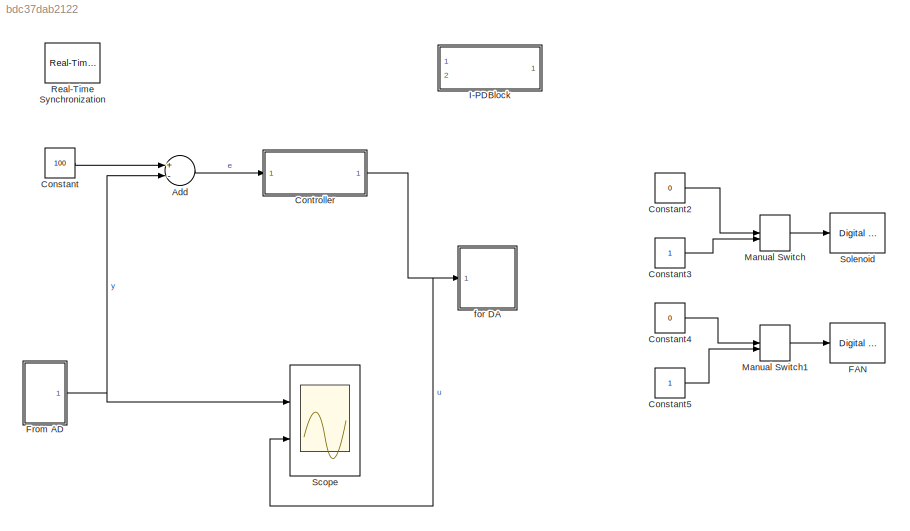
MODEL slx_bdc37dab2122
KIND model
CONFIG AbsTol = auto
CONFIG EnableMultiTasking = off
CONFIG FixedStep = 0.1
CONFIG MaxStep = auto
CONFIG MinStep = auto
CONFIG RelTol = 1e-3
CONFIG SampleTimeConstraint = Unconstrained
CONFIG Solver = FixedStepAuto
CONFIG SolverName = FixedStepAuto
CONFIG StartTime = 0.0
CONFIG StopTime = 200
BLOCK [Sum] Add
  InputSameDT = off
  Inputs = +-
  OutDataTypeStr = Inherit: Inherit via internal rule
  Ports = [2, 1]
  SaturateOnIntegerOverflow = off
BLOCK [Constant] Constant
  Value = 100
BLOCK [Constant] Constant2
  Value = 0
BLOCK [Constant] Constant3
BLOCK [Constant] Constant4
  Value = 0
BLOCK [Constant] Constant5
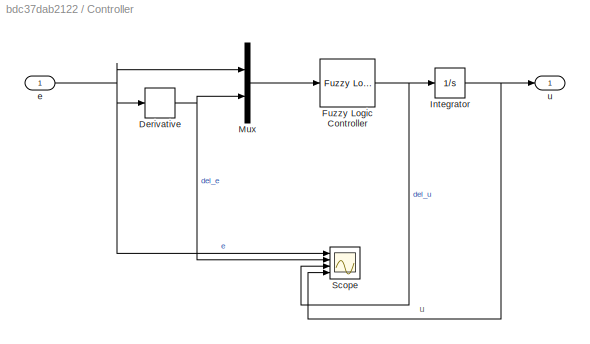
BLOCK [SubSystem] Controller
  Ports = [1, 1]
  RequestExecContextInheritance = off
  Variant = off
BLOCK [Derivative] Controller/Derivative
BLOCK [Reference] Controller/Fuzzy Logic Controller  REF=fuzblock/Fuzzy Logic   (lib defined in mdl_858b3b3e7478)
Controller
  Ports = [1, 1]
  SourceBlock = fuzblock/Fuzzy Logic \nController
  SourceProductBaseCode = FL
  SourceProductName = Fuzzy Logic Toolbox
  SourceType = FIS
BLOCK [Integrator] Controller/Integrator
  InitialCondition = 30
  LimitOutput = on
  LowerSaturationLimit = 0
  Ports = [1, 1]
  UpperSaturationLimit = 30
BLOCK [Mux] Controller/Mux
  DisplayOption = bar
  Inputs = 2
  Ports = [2, 1]
BLOCK [Scope] Controller/Scope
  NumInputPorts = 4
  Ports = [4]
  ScopeSpecificationString = Simulink.scopes.TimeScopeBlockCfg('CurrentConfiguration', extmgr.ConfigurationSet(extmgr.Configuration('Core','General UI',true,'FigureColor',[1 1 1]),extmgr.Configuration('Core','Source UI',true),extmgr.Configuration('Sources','WiredSimulink',true,'DataLoggingVariableName','ScopeData1'),extmgr.Configuration('Visuals','Time Domain',true,'SerializedDisplays',{struct('MinYLimReal','-95.34302','MaxYL...<+4081ch>
BLOCK [Inport] Controller/e 
  IconDisplay = Port number
BLOCK [Outport] Controller/u
  IconDisplay = Port number
BLOCK [Reference] FAN  REF=sldrtlib/Digital Output
  AttributesFormatString = Humusoft\nMF644 [auto]
  Ports = [1]
  SourceBlock = sldrtlib/Digital Output
  SourceProductBaseCode = WT
  SourceProductName = Simulink Desktop Real-Time
  SourceType = Simulink Desktop Real-Time Digital Output
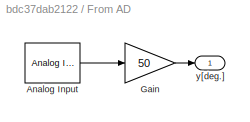
BLOCK [SubSystem] From AD
  Ports = [0, 1]
  RequestExecContextInheritance = off
  Variant = off
BLOCK [Reference] From AD/Analog Input  REF=sldrtlib/Analog Input
  AttributesFormatString = Humusoft\nMF644 [auto]
  Ports = [0, 1]
  SourceBlock = sldrtlib/Analog Input
  SourceProductBaseCode = WT
  SourceProductName = Simulink Desktop Real-Time
  SourceType = Simulink Desktop Real-Time Analog Input
BLOCK [Gain] From AD/Gain
  Gain = 50
  OutDataTypeStr = Inherit: Inherit via internal rule
  ParamDataTypeStr = Inherit: Inherit via internal rule
  SaturateOnIntegerOverflow = off
BLOCK [Outport] From AD/y[deg.]
  IconDisplay = Port number
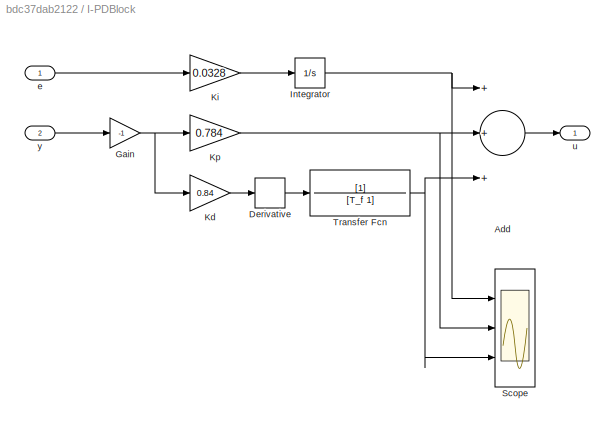
BLOCK [SubSystem] I-PDBlock
  Commented = on
  Ports = [2, 1]
  RequestExecContextInheritance = off
  Variant = off
BLOCK [Sum] I-PDBlock/Add
  InputSameDT = off
  Inputs = +++
  OutDataTypeStr = Inherit: Inherit via internal rule
  Ports = [3, 1]
  SaturateOnIntegerOverflow = off
BLOCK [Derivative] I-PDBlock/Derivative
BLOCK [Gain] I-PDBlock/Gain
  Gain = -1
  OutDataTypeStr = Inherit: Inherit via internal rule
  ParamDataTypeStr = Inherit: Inherit via internal rule
  SaturateOnIntegerOverflow = off
BLOCK [Integrator] I-PDBlock/Integrator
  Ports = [1, 1]
BLOCK [Gain] I-PDBlock/Kd
  Gain = 0.84
  OutDataTypeStr = Inherit: Inherit via internal rule
  ParamDataTypeStr = Inherit: Inherit via internal rule
  SaturateOnIntegerOverflow = off
BLOCK [Gain] I-PDBlock/Ki
  Gain = 0.0328
  OutDataTypeStr = Inherit: Inherit via internal rule
  ParamDataTypeStr = Inherit: Inherit via internal rule
  SaturateOnIntegerOverflow = off
BLOCK [Gain] I-PDBlock/Kp 
  Gain = 0.784
  OutDataTypeStr = Inherit: Inherit via internal rule
  ParamDataTypeStr = Inherit: Inherit via internal rule
  SaturateOnIntegerOverflow = off
BLOCK [Scope] I-PDBlock/Scope
  NumInputPorts = 3
  Ports = [3]
  ScopeSpecificationString = Simulink.scopes.TimeScopeBlockCfg('CurrentConfiguration', extmgr.ConfigurationSet(extmgr.Configuration('Core','General UI',true),extmgr.Configuration('Core','Source UI',true),extmgr.Configuration('Sources','WiredSimulink',true,'DataLoggingVariableName','ScopeData1'),extmgr.Configuration('Visuals','Time Domain',true,'SerializedDisplays',{struct('MinYLimReal','-11.81983','MaxYLimReal','106.37848','Y...<+2741ch>
BLOCK [TransferFcn] I-PDBlock/Transfer Fcn
  Denominator = [T_f 1]
BLOCK [Inport] I-PDBlock/e
  IconDisplay = Port number
BLOCK [Outport] I-PDBlock/u
  IconDisplay = Port number
BLOCK [Inport] I-PDBlock/y 
  IconDisplay = Port number
  Port = 2
BLOCK [ManualSwitch] Manual Switch
BLOCK [ManualSwitch] Manual Switch1
BLOCK [Reference] Real-Time Synchronization  REF=sldrtlib/Real-Time
Synchronization
  Ports = []
  SourceBlock = sldrtlib/Real-Time\nSynchronization
  SourceProductBaseCode = WT
  SourceProductName = Simulink Desktop Real-Time
  SourceType = Simulink Desktop Real-Time Synchronization
BLOCK [Scope] Scope
  NumInputPorts = 2
  Ports = [2]
  ScopeSpecificationString = Simulink.scopes.TimeScopeBlockCfg('CurrentConfiguration', extmgr.ConfigurationSet(extmgr.Configuration('Core','General UI',true,'FigureColor',[1 1 1]),extmgr.Configuration('Core','Source UI',true),extmgr.Configuration('Sources','WiredSimulink',true,'DataLoggingVariableName','ScopeData1'),extmgr.Configuration('Visuals','Time Domain',true,'SerializedDisplays',{struct('MinYLimReal','10.92529','MaxYLi...<+2313ch>
BLOCK [Reference] Solenoid  REF=sldrtlib/Digital Output
  AttributesFormatString = Humusoft\nMF644 [auto]
  Ports = [1]
  SourceBlock = sldrtlib/Digital Output
  SourceProductBaseCode = WT
  SourceProductName = Simulink Desktop Real-Time
  SourceType = Simulink Desktop Real-Time Digital Output
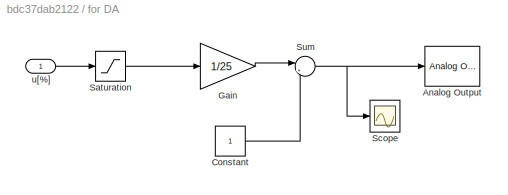
BLOCK [SubSystem] for DA
  Ports = [1]
  RequestExecContextInheritance = off
  Variant = off
BLOCK [Reference] for DA/Analog Output   REF=sldrtlib/Analog Output
  AttributesFormatString = Humusoft\nMF644 [auto]
  Ports = [1]
  SourceBlock = sldrtlib/Analog Output
  SourceProductBaseCode = WT
  SourceProductName = Simulink Desktop Real-Time
  SourceType = Simulink Desktop Real-Time Analog Output
BLOCK [Constant] for DA/Constant
BLOCK [Gain] for DA/Gain
  Gain = 1/25
  OutDataTypeStr = Inherit: Inherit via internal rule
  ParamDataTypeStr = Inherit: Inherit via internal rule
  SaturateOnIntegerOverflow = off
BLOCK [Saturate] for DA/Saturation
  InputPortMap = u0
  LowerLimit = 0
  Ports = [1, 1]
  UpperLimit = 100
BLOCK [Scope] for DA/Scope
  NumInputPorts = 1
  Ports = [1]
  ScopeSpecificationString = Simulink.scopes.TimeScopeBlockCfg('CurrentConfiguration', extmgr.ConfigurationSet(extmgr.Configuration('Core','General UI',true),extmgr.Configuration('Core','Source UI',true),extmgr.Configuration('Sources','WiredSimulink',true,'DataLoggingVariableName','ScopeData2'),extmgr.Configuration('Visuals','Time Domain',true,'SerializedDisplays',{struct('MinYLimReal','2.00000','MaxYLimReal','4.00000','YLabe...<+1415ch>
BLOCK [Sum] for DA/Sum
  IconShape = round
  InputSameDT = off
  Inputs = |++
  OutDataTypeStr = Inherit: Inherit via internal rule
  Ports = [2, 1]
  SaturateOnIntegerOverflow = off
BLOCK [Inport] for DA/u[%]
  IconDisplay = Port number
ANNOTATION Controller: u
LINE Add:1 -> Controller:1
LINE Constant2:1 -> Manual Switch:1
LINE Constant3:1 -> Manual Switch:2
LINE Constant4:1 -> Manual Switch1:1
LINE Constant5:1 -> Manual Switch1:2
LINE Constant:1 -> Add:1
NET Controller/Derivative:1 -> Controller/Mux:2, Controller/Scope:2
NET Controller/Fuzzy Logic Controller:1 -> Controller/Integrator:1, Controller/Scope:3
NET Controller/Integrator:1 -> Controller/Scope:4, Controller/u:1
LINE Controller/Mux:1 -> Controller/Fuzzy Logic Controller:1
NET Controller/e :1 -> Controller/Derivative:1, Controller/Mux:1, Controller/Scope:1
NET Controller:1 -> Scope:2, for DA:1
LINE From AD/Analog Input:1 -> From AD/Gain:1
LINE From AD/Gain:1 -> From AD/y[deg.]:1
NET From AD:1 -> Add:2, Scope:1
LINE I-PDBlock/Add:1 -> I-PDBlock/u:1
LINE I-PDBlock/Derivative:1 -> I-PDBlock/Transfer Fcn:1
NET I-PDBlock/Gain:1 -> I-PDBlock/Kd:1, I-PDBlock/Kp :1
NET I-PDBlock/Integrator:1 -> I-PDBlock/Add:1, I-PDBlock/Scope:1
LINE I-PDBlock/Kd:1 -> I-PDBlock/Derivative:1
LINE I-PDBlock/Ki:1 -> I-PDBlock/Integrator:1
NET I-PDBlock/Kp :1 -> I-PDBlock/Add:2, I-PDBlock/Scope:2
NET I-PDBlock/Transfer Fcn:1 -> I-PDBlock/Add:3, I-PDBlock/Scope:3
LINE I-PDBlock/e:1 -> I-PDBlock/Ki:1
LINE I-PDBlock/y :1 -> I-PDBlock/Gain:1
LINE Manual Switch1:1 -> FAN:1
LINE Manual Switch:1 -> Solenoid:1
LINE for DA/Constant:1 -> for DA/Sum:2
LINE for DA/Gain:1 -> for DA/Sum:1
LINE for DA/Saturation:1 -> for DA/Gain:1
NET for DA/Sum:1 -> for DA/Analog Output :1, for DA/Scope:1
LINE for DA/u[%]:1 -> for DA/Saturation:1
note: NET lines group one-source signal fan-out (src -> all destinations, sorted); 1:1 wires keep LINE
